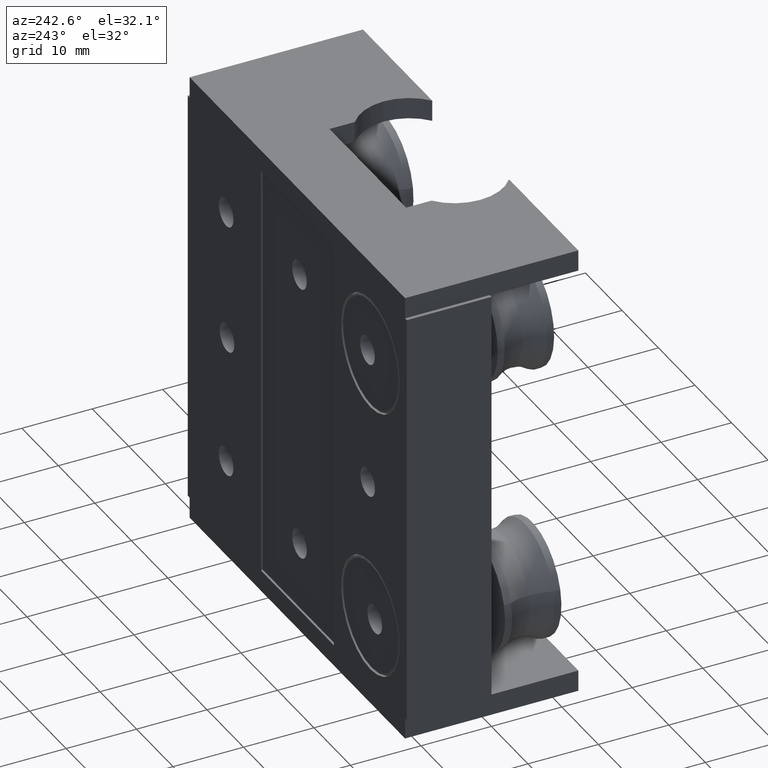
[diagram: clean part render]
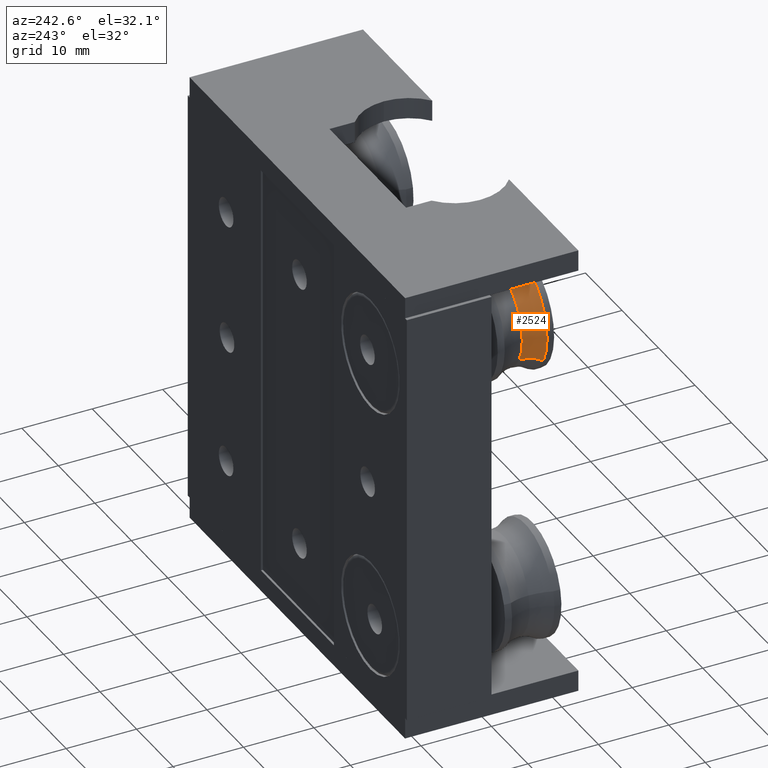
[diagram: same view with one face highlighted and labeled with its STEP entity id]
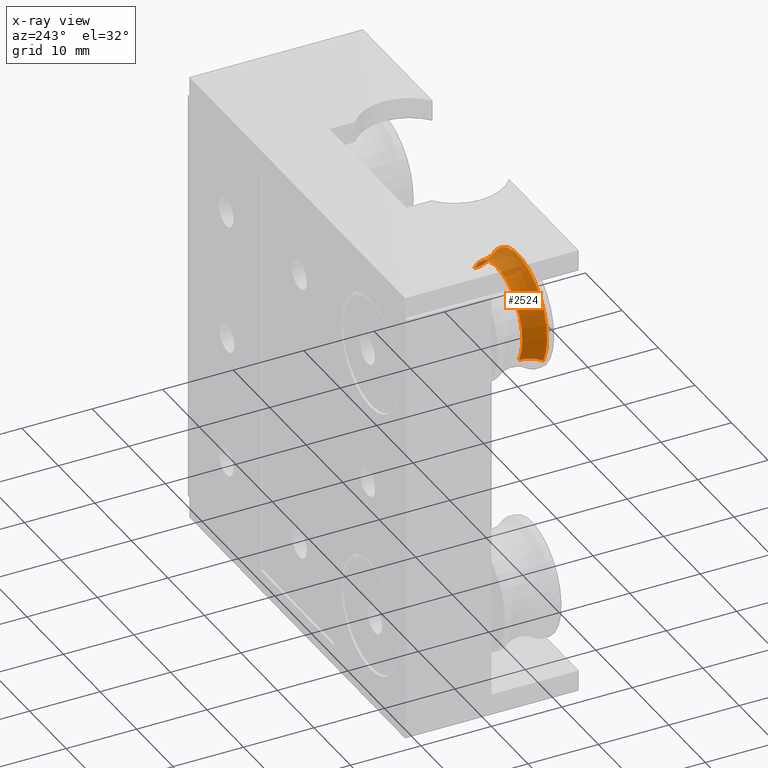
[diagram: x-ray of the same camera — body ghosted, the highlighted face saturated]
A machine part, auxiliary view. The second image highlights one B-rep face of the part: STEP entity #2524.
The next image is the same camera in x-ray: the body ghosted, the highlighted face saturated — about 22% of this face is hidden behind the body in this view.
In plain terms, the highlighted toroidal blend (fillet) surface has major radius 12 mm and minor (blend) radius 5 mm.
Its self-contained STEP definition (entity closure, byte-faithful):
#11 = VERTEX_POINT ( 'NONE', #1107 ) ;
#77 = EDGE_CURVE ( 'NONE', #1641, #11, #269, .T. ) ;
#106 = EDGE_CURVE ( 'NONE', #1641, #2233, #1117, .T. ) ;
#235 = DIRECTION ( 'NONE',  ( -0.000000000000000000, -0.000000000000000000, 1.000000000000000000 ) ) ;
#269 = CIRCLE ( 'NONE', #800, 8.000000000000003553 ) ;
#394 = DIRECTION ( 'NONE',  ( 0.000000000000000000, -1.000000000000000000, 0.000000000000000000 ) ) ;
#570 = AXIS2_PLACEMENT_3D ( 'NONE', #1766, #2801, #2856 ) ;
#710 = EDGE_LOOP ( 'NONE', ( #1184, #1362, #2149, #1782 ) ) ;
#725 = AXIS2_PLACEMENT_3D ( 'NONE', #2119, #1867, #1163 ) ;
#800 = AXIS2_PLACEMENT_3D ( 'NONE', #937, #235, #1194 ) ;
#920 = DIRECTION ( 'NONE',  ( 1.224646799147353207E-16, 1.000000000000000000, 0.000000000000000000 ) ) ;
#937 = CARTESIAN_POINT ( 'NONE',  ( 0.000000000000000000, 0.000000000000000000, 7.000000000000001776 ) ) ;
#981 = CIRCLE ( 'NONE', #2846, 4.999999999999995559 ) ;
#1107 = CARTESIAN_POINT ( 'NONE',  ( 8.000000000000003553, 0.000000000000000000, 7.000000000000001776 ) ) ;
#1117 = CIRCLE ( 'NONE', #1237, 4.999999999999997335 ) ;
#1163 = DIRECTION ( 'NONE',  ( 1.000000000000000000, 0.000000000000000000, 0.000000000000000000 ) ) ;
#1184 = ORIENTED_EDGE ( 'NONE', *, *, #106, .T. ) ;
#1194 = DIRECTION ( 'NONE',  ( 1.000000000000000000, 0.000000000000000000, 0.000000000000000000 ) ) ;
#1237 = AXIS2_PLACEMENT_3D ( 'NONE', #3208, #920, #1694 ) ;
#1313 = EDGE_CURVE ( 'NONE', #11, #2367, #981, .T. ) ;
#1336 = CARTESIAN_POINT ( 'NONE',  ( -8.000000000000003553, 9.797174393178829602E-16, 7.000000000000001776 ) ) ;
#1362 = ORIENTED_EDGE ( 'NONE', *, *, #1721, .T. ) ;
#1641 = VERTEX_POINT ( 'NONE', #1336 ) ;
#1648 = CARTESIAN_POINT ( 'NONE',  ( 11.99999999999999645, 0.000000000000000000, 4.000000000000000888 ) ) ;
#1686 = TOROIDAL_SURFACE ( 'NONE', #570, 11.99999999999999645, 4.999999999999995559 ) ;
#1694 = DIRECTION ( 'NONE',  ( -1.000000000000000000, 1.224646799147353207E-16, 0.000000000000000000 ) ) ;
#1721 = EDGE_CURVE ( 'NONE', #2233, #2367, #2629, .T. ) ;
#1766 = CARTESIAN_POINT ( 'NONE',  ( 0.000000000000000000, 0.000000000000000000, 4.000000000000000888 ) ) ;
#1782 = ORIENTED_EDGE ( 'NONE', *, *, #77, .F. ) ;
#1867 = DIRECTION ( 'NONE',  ( -0.000000000000000000, -0.000000000000000000, 1.000000000000000000 ) ) ;
#2119 = CARTESIAN_POINT ( 'NONE',  ( 0.000000000000000000, 0.000000000000000000, 4.000000000000000000 ) ) ;
#2135 = DIRECTION ( 'NONE',  ( 0.000000000000000000, 0.000000000000000000, -1.000000000000000000 ) ) ;
#2149 = ORIENTED_EDGE ( 'NONE', *, *, #1313, .F. ) ;
#2233 = VERTEX_POINT ( 'NONE', #3280 ) ;
#2287 = FACE_OUTER_BOUND ( 'NONE', #710, .T. ) ;
#2367 = VERTEX_POINT ( 'NONE', #2687 ) ;
#2524 = ADVANCED_FACE ( 'NONE', ( #2287 ), #1686, .F. ) ;
#2629 = CIRCLE ( 'NONE', #725, 7.000000000000000888 ) ;
#2687 = CARTESIAN_POINT ( 'NONE',  ( 7.000000000000000888, 0.000000000000000000, 4.000000000000000000 ) ) ;
#2801 = DIRECTION ( 'NONE',  ( -0.000000000000000000, -0.000000000000000000, 1.000000000000000000 ) ) ;
#2846 = AXIS2_PLACEMENT_3D ( 'NONE', #1648, #394, #2135 ) ;
#2856 = DIRECTION ( 'NONE',  ( 1.000000000000000000, 0.000000000000000000, 0.000000000000000000 ) ) ;
#3208 = CARTESIAN_POINT ( 'NONE',  ( -11.99999999999999645, 1.469576158976823553E-15, 4.000000000000000888 ) ) ;
#3280 = CARTESIAN_POINT ( 'NONE',  ( -7.000000000000000888, 8.572527594031474176E-16, 4.000000000000000000 ) ) ;